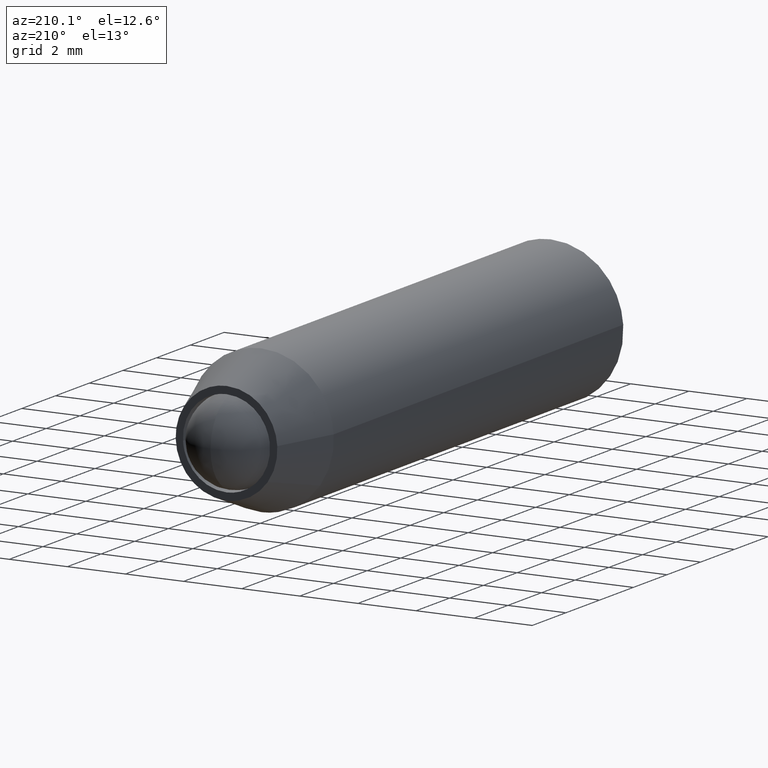
[diagram: clean part render]
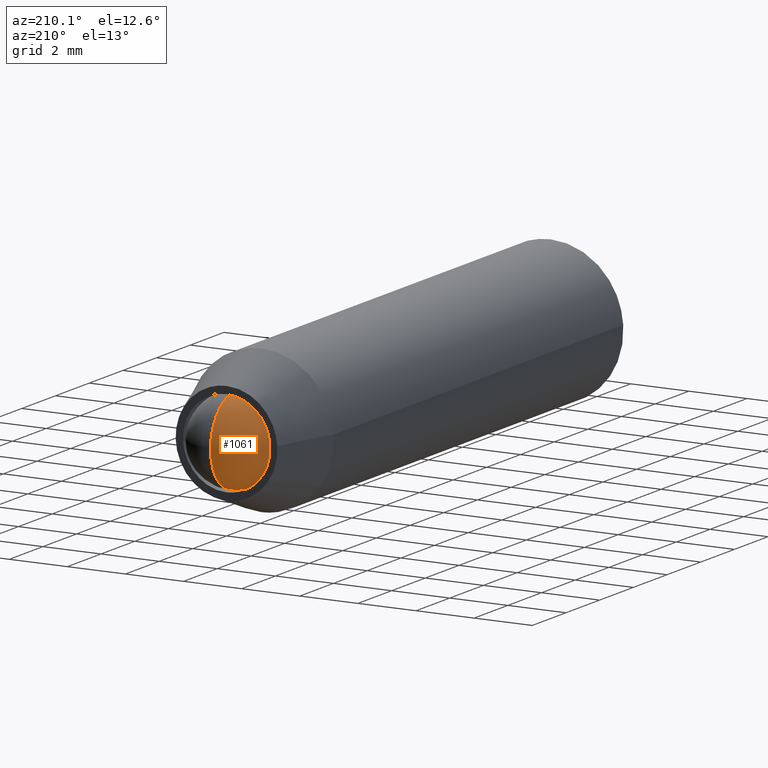
[diagram: same view with one face highlighted and labeled with its STEP entity id]
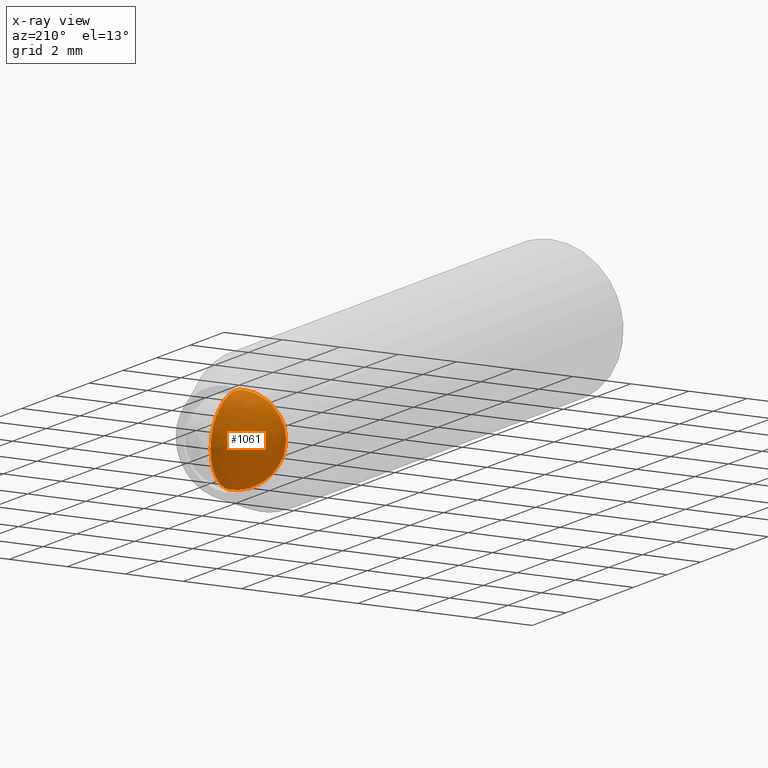
[diagram: x-ray of the same camera — body ghosted, the highlighted face saturated]
A machine part, auxiliary view. The second image highlights one B-rep face of the part: STEP entity #1061.
The next image is the same camera in x-ray: the body ghosted, the highlighted face saturated — about 0% of this face is hidden behind the body in this view.
In plain terms, the highlighted face is a freeform B-spline surface patch.
Its self-contained STEP definition (entity closure, byte-faithful):
#981=CARTESIAN_POINT('',(0.562500000000000,-1.533258295159517,0.983258295159517));
#982=CARTESIAN_POINT('',(0.367924528301887,-1.440498078635034,1.187330771513379));
#983=CARTESIAN_POINT('',(0.071428571428571,-0.924574588632197,1.498298354528788));
#984=CARTESIAN_POINT('',(0.071428571428571,-0.175425411367803,1.498298354528788));
#985=CARTESIAN_POINT('',(0.367924528301887,0.340498078635034,1.187330771513379));
#986=CARTESIAN_POINT('',(0.562500000000000,0.433258295159517,0.983258295159517));
#987=CARTESIAN_POINT('',(0.367924528301887,-1.737330771513379,0.890498078635034));
#988=CARTESIAN_POINT('',(0.071428571428571,-1.673723765896591,1.123723765896591));
#989=CARTESIAN_POINT('',(-0.435483870967742,-1.057488152340395,1.522464457021188));
#990=CARTESIAN_POINT('',(-0.435483870967742,-0.042511847659604,1.522464457021188));
#991=CARTESIAN_POINT('',(0.071428571428571,0.573723765896590,1.123723765896591));
#992=CARTESIAN_POINT('',(0.367924528301887,0.637330771513379,0.890498078635034));
#993=CARTESIAN_POINT('',(0.071428571428571,-2.048298354528788,0.374574588632197));
#994=CARTESIAN_POINT('',(-0.435483870967742,-2.072464457021187,0.507488152340396));
#995=CARTESIAN_POINT('',(-1.500000000000000,-1.336606636127613,0.786606636127614));
#996=CARTESIAN_POINT('',(-1.500000000000000,0.236606636127613,0.786606636127614));
#997=CARTESIAN_POINT('',(-0.435483870967742,0.972464457021187,0.507488152340396));
#998=CARTESIAN_POINT('',(0.071428571428571,0.948298354528788,0.374574588632197));
#999=CARTESIAN_POINT('',(0.071428571428571,-2.048298354528788,-0.374574588632196));
#1000=CARTESIAN_POINT('',(-0.435483870967742,-2.072464457021187,-0.507488152340395));
#1001=CARTESIAN_POINT('',(-1.500000000000000,-1.336606636127613,-0.786606636127613));
#1002=CARTESIAN_POINT('',(-1.500000000000000,0.236606636127613,-0.786606636127613));
#1003=CARTESIAN_POINT('',(-0.435483870967742,0.972464457021187,-0.507488152340395));
#1004=CARTESIAN_POINT('',(0.071428571428571,0.948298354528788,-0.374574588632196));
#1005=CARTESIAN_POINT('',(0.367924528301887,-1.737330771513379,-0.890498078635034));
#1006=CARTESIAN_POINT('',(0.071428571428571,-1.673723765896591,-1.123723765896590));
#1007=CARTESIAN_POINT('',(-0.435483870967742,-1.057488152340395,-1.522464457021187));
#1008=CARTESIAN_POINT('',(-0.435483870967742,-0.042511847659604,-1.522464457021187));
#1009=CARTESIAN_POINT('',(0.071428571428571,0.573723765896590,-1.123723765896590));
#1010=CARTESIAN_POINT('',(0.367924528301887,0.637330771513379,-0.890498078635034));
#1011=CARTESIAN_POINT('',(0.562500000000000,-1.533258295159517,-0.983258295159517));
#1012=CARTESIAN_POINT('',(0.367924528301887,-1.440498078635034,-1.187330771513379));
#1013=CARTESIAN_POINT('',(0.071428571428571,-0.924574588632197,-1.498298354528787));
#1014=CARTESIAN_POINT('',(0.071428571428571,-0.175425411367803,-1.498298354528787));
#1015=CARTESIAN_POINT('',(0.367924528301887,0.340498078635034,-1.187330771513379));
#1016=CARTESIAN_POINT('',(0.562500000000000,0.433258295159517,-0.983258295159517));
#1024=(BOUNDED_SURFACE()B_SPLINE_SURFACE(2,2,((#981,#987,#993,#999,#1005,#1011),(#982,#988,#994,#1000,#1006,#1012),(#983,#989,#995,#1001,#1007,#1013),(#984,#990,#996,#1002,#1008,#1014),(#985,#991,#997,#1003,#1009,#1015),(#986,#992,#998,#1004,#1010,#1016)),.UNSPECIFIED.,.F.,.F.,.U.)GEOMETRIC_REPRESENTATION_ITEM()QUASI_UNIFORM_SURFACE()RATIONAL_B_SPLINE_SURFACE(((3.200000000000000,2.650000000000000,2.100000000000000,2.100000000000000,2.650000000000000,3.200000000000000),(2.650000000000000,2.100000000000000,1.550000000000000,1.550000000000000,2.100000000000000,2.650000000000000),(2.100000000000000,1.550000000000000,1.0,1.0,1.550000000000000,2.100000000000000),(2.100000000000000,1.550000000000000,1.0,1.0,1.550000000000000,2.100000000000000),(2.650000000000000,2.100000000000000,1.550000000000000,1.550000000000000,2.100000000000000,2.650000000000000),(3.200000000000000,2.650000000000000,2.100000000000000,2.100000000000000,2.650000000000000,3.200000000000000)))REPRESENTATION_ITEM('')SURFACE());
#1025=CARTESIAN_POINT('',(0.0,0.950000000000000,4.806580E-016));
#1026=VERTEX_POINT('',#1025);
#1027=CARTESIAN_POINT('',(0.0,-2.050000000000000,4.806580E-016));
#1028=VERTEX_POINT('',#1027);
#1029=CARTESIAN_POINT('',(0.0,0.950000000000000,4.806580E-016));
#1030=CARTESIAN_POINT('',(0.0,0.950000000000000,-1.500000000000000));
#1031=CARTESIAN_POINT('',(0.0,-0.550000000000000,-1.500000000000000));
#1032=CARTESIAN_POINT('',(0.0,-2.050000000000001,-1.500000000000000));
#1033=CARTESIAN_POINT('',(0.0,-2.050000000000000,4.806580E-016));
#1041=(BOUNDED_CURVE()B_SPLINE_CURVE(2,(#1029,#1030,#1031,#1032,#1033),.UNSPECIFIED.,.F.,.U.)B_SPLINE_CURVE_WITH_KNOTS((3,2,3),(0.0,0.500000000000000,1.0),.UNSPECIFIED.)CURVE()GEOMETRIC_REPRESENTATION_ITEM()RATIONAL_B_SPLINE_CURVE((1.0,0.707106781186548,1.0,0.707106781186548,1.0))REPRESENTATION_ITEM(''));
#1042=EDGE_CURVE('',#1026,#1028,#1041,.T.);
#1043=ORIENTED_EDGE('',*,*,#1042,.T.);
#1044=CARTESIAN_POINT('',(0.0,0.950000000000000,4.806580E-016));
#1045=CARTESIAN_POINT('',(0.0,0.950000000000000,1.500000000000001));
#1046=CARTESIAN_POINT('',(0.0,-0.550000000000000,1.500000000000000));
#1047=CARTESIAN_POINT('',(0.0,-2.050000000000001,1.500000000000001));
#1048=CARTESIAN_POINT('',(0.0,-2.050000000000000,4.806580E-016));
#1056=(BOUNDED_CURVE()B_SPLINE_CURVE(2,(#1044,#1045,#1046,#1047,#1048),.UNSPECIFIED.,.F.,.U.)B_SPLINE_CURVE_WITH_KNOTS((3,2,3),(0.0,0.500000000000000,1.0),.UNSPECIFIED.)CURVE()GEOMETRIC_REPRESENTATION_ITEM()RATIONAL_B_SPLINE_CURVE((1.0,0.707106781186548,1.0,0.707106781186548,1.0))REPRESENTATION_ITEM(''));
#1057=EDGE_CURVE('',#1026,#1028,#1056,.T.);
#1058=ORIENTED_EDGE('',*,*,#1057,.F.);
#1059=EDGE_LOOP('',(#1043,#1058));
#1060=FACE_OUTER_BOUND('',#1059,.T.);
#1061=ADVANCED_FACE('',(#1060),#1024,.T.);